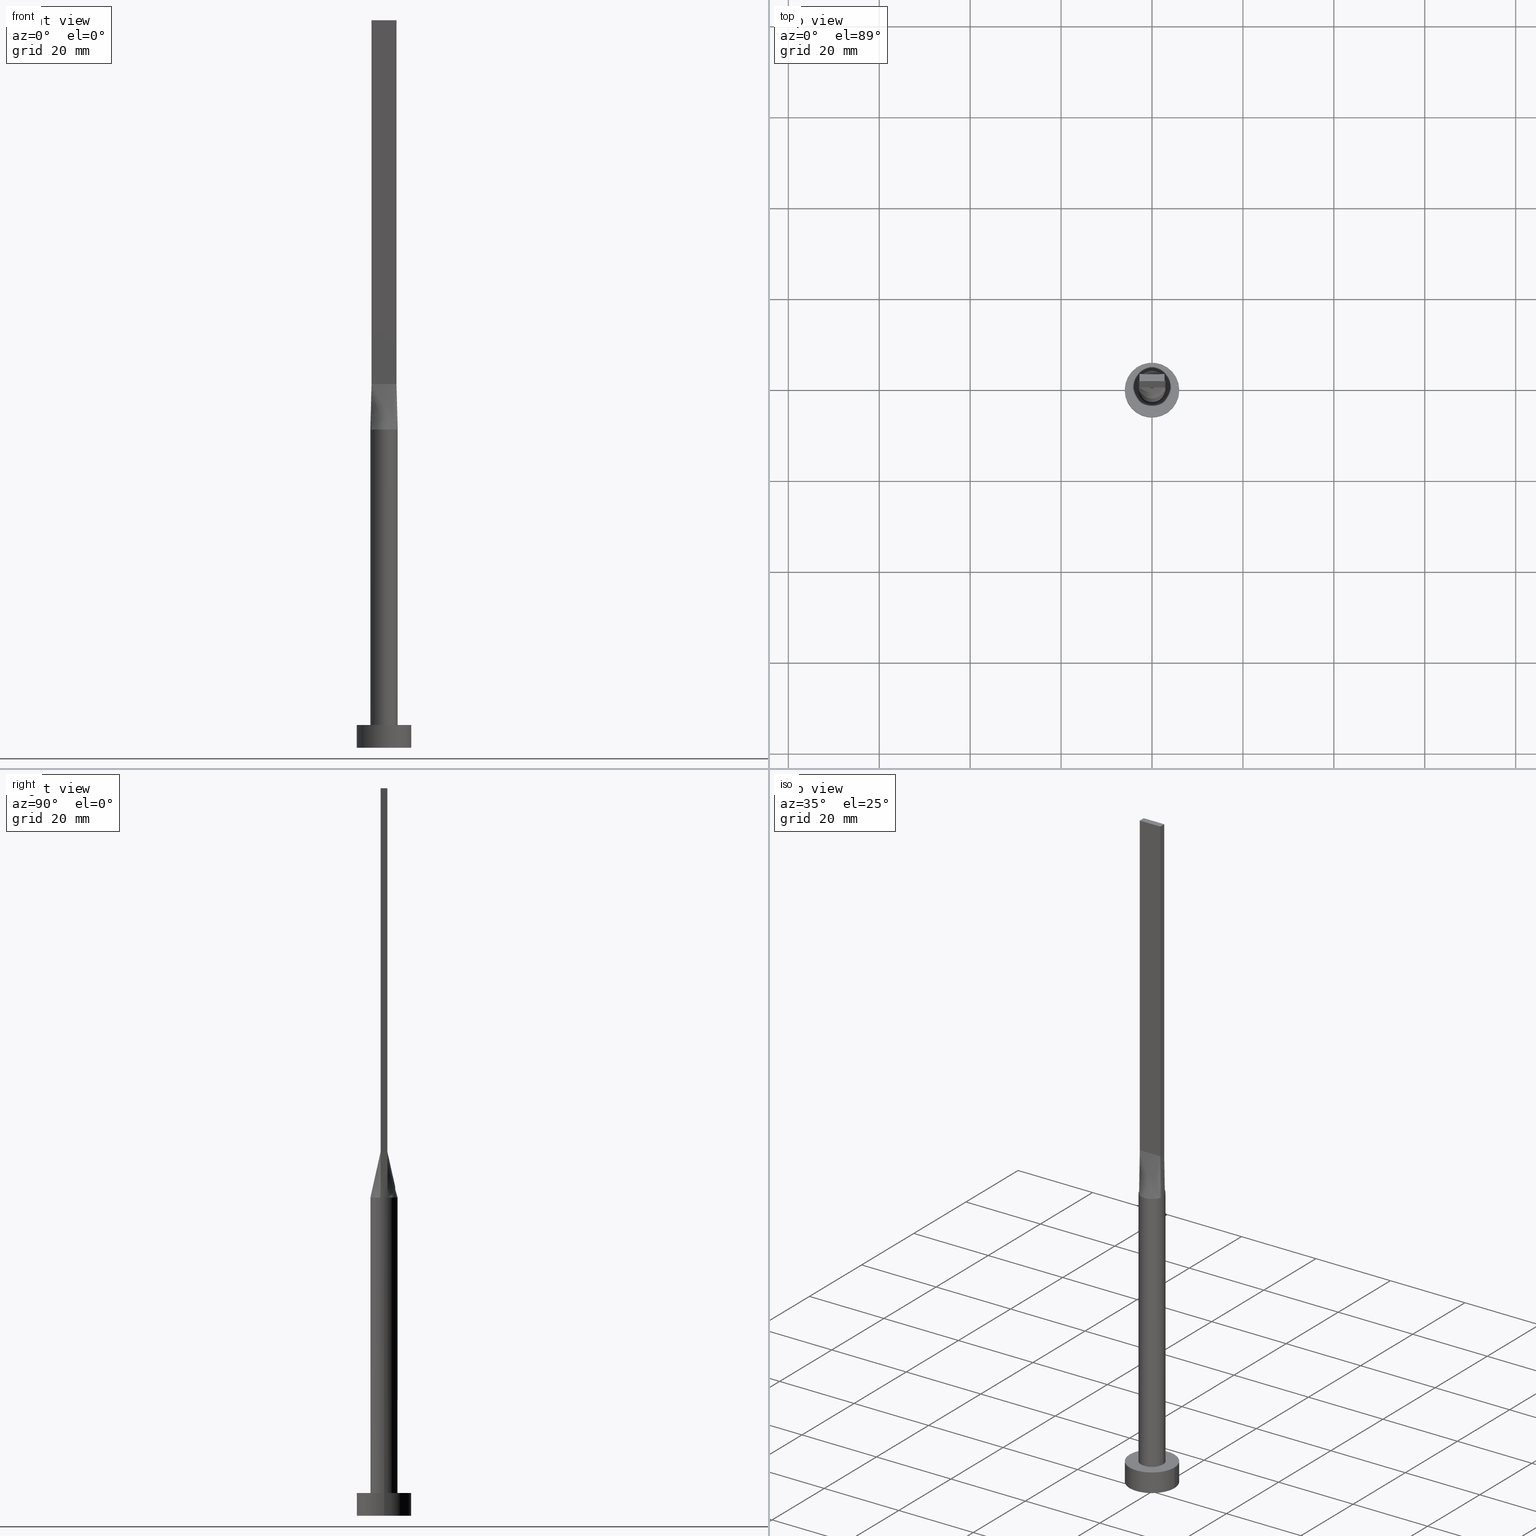
[diagram: canonical four-view strip — front | top / right | iso, engineering-drawing reading convention]
A machine part, canonical four-view strip (front | top / right | iso — engineering-drawing reading convention). The complete STEP part file that produces these views, byte-faithful:
ISO-10303-21;
HEADER;
FILE_DESCRIPTION (( 'STEP AP203' ),
    '1' );
FILE_NAME ('e038.STEP',
    '2023-02-13T10:28:24',
    ( '' ),
    ( '' ),
    'SwSTEP 2.0',
    'SolidWorks 2019',
    '' );
FILE_SCHEMA (( 'CONFIG_CONTROL_DESIGN' ));
ENDSEC;

DATA;
#1 = AXIS2_PLACEMENT_3D ( 'NONE', #257, #96, #499 ) ;
#2 = DIRECTION ( 'NONE',  ( 0.000000000000000000, 0.000000000000000000, 1.000000000000000000 ) ) ;
#3 = ORIENTED_EDGE ( 'NONE', *, *, #216, .T. ) ;
#4 = CARTESIAN_POINT ( 'NONE',  ( -2.442412046818594806, -1.765588549521968975, 69.99999999999998579 ) ) ;
#5 = ORIENTED_EDGE ( 'NONE', *, *, #493, .F. ) ;
#6 = CARTESIAN_POINT ( 'NONE',  ( -1.604166666666669183, -0.7499999999999995559, 79.99999999999998579 ) ) ;
#7 = ADVANCED_FACE ( 'NONE', ( #98, #263 ), #270, .T. ) ;
#8 = CC_DESIGN_DATE_AND_TIME_ASSIGNMENT ( #267, #327, ( #45 ) ) ;
#9 = EDGE_CURVE ( 'NONE', #138, #114, #504, .T. ) ;
#10 = ORIENTED_EDGE ( 'NONE', *, *, #35, .F. ) ;
#11 = AXIS2_PLACEMENT_3D ( 'NONE', #574, #207, #158 ) ;
#12 = CARTESIAN_POINT ( 'NONE',  ( 0.000000000000000000, 0.000000000000000000, 5.000000000000000000 ) ) ;
#13 = CARTESIAN_POINT ( 'NONE',  ( -2.750000000000000000, 0.7500000000000002220, 80.00000000000000000 ) ) ;
#14 = EDGE_CURVE ( 'NONE', #490, #289, #432, .T. ) ;
#15 = CARTESIAN_POINT ( 'NONE',  ( 2.894291463713196677, -0.7893522173763275473, 70.00000000000000000 ) ) ;
#16 = CARTESIAN_POINT ( 'NONE',  ( 2.750000000000000000, -0.4999999999999995559, 79.99999999999998579 ) ) ;
#17 = ORIENTED_EDGE ( 'NONE', *, *, #9, .F. ) ;
#18 = DIRECTION ( 'NONE',  ( -0.000000000000000000, -0.000000000000000000, -1.000000000000000000 ) ) ;
#19 = CIRCLE ( 'NONE', #358, 6.000000000000000888 ) ;
#20 = CARTESIAN_POINT ( 'NONE',  ( -2.894506632021299541, 0.7894116946786272626, 70.00000000000000000 ) ) ;
#21 = VERTEX_POINT ( 'NONE', #90 ) ;
#22 = COORDINATED_UNIVERSAL_TIME_OFFSET ( 1, 0, .AHEAD. ) ;
#23 = VECTOR ( 'NONE', #492, 1000.000000000000000 ) ;
#24 = DIRECTION ( 'NONE',  ( 1.000000000000000000, 0.000000000000000000, -0.000000000000000000 ) ) ;
#25 = ORIENTED_EDGE ( 'NONE', *, *, #9, .T. ) ;
#26 = APPROVAL_ROLE ( '' ) ;
#27 = CARTESIAN_POINT ( 'NONE',  ( -1.833333333333335258, -0.7499999999999995559, 79.99999999999998579 ) ) ;
#28 = CARTESIAN_POINT ( 'NONE',  ( -1.751288851749021491, 2.458468820606022565, 70.00000000000001421 ) ) ;
#29 = LINE ( 'NONE', #336, #94 ) ;
#30 = VECTOR ( 'NONE', #100, 1000.000000000000114 ) ;
#31 = EDGE_CURVE ( 'NONE', #341, #424, #259, .T. ) ;
#32 = EDGE_LOOP ( 'NONE', ( #557, #247 ) ) ;
#33 = CC_DESIGN_PERSON_AND_ORGANIZATION_ASSIGNMENT ( #448, #218, ( #520 ) ) ;
#34 = EDGE_LOOP ( 'NONE', ( #173, #371, #350, #39 ) ) ;
#35 = EDGE_CURVE ( 'NONE', #56, #21, #19, .T. ) ;
#36 = ORIENTED_EDGE ( 'NONE', *, *, #125, .T. ) ;
#37 = CARTESIAN_POINT ( 'NONE',  ( 2.248179627679386172, 2.014142483996539834, 70.00000000000000000 ) ) ;
#38 = CARTESIAN_POINT ( 'NONE',  ( -2.750000000000000000, -0.4999999999999994449, 79.99999999999998579 ) ) ;
#39 = ORIENTED_EDGE ( 'NONE', *, *, #428, .F. ) ;
#40 = FACE_OUTER_BOUND ( 'NONE', #572, .T. ) ;
#41 = CC_DESIGN_PERSON_AND_ORGANIZATION_ASSIGNMENT ( #372, #563, ( #201 ) ) ;
#42 = CARTESIAN_POINT ( 'NONE',  ( -6.000000000000000888, 0.000000000000000000, 5.000000000000000000 ) ) ;
#43 = CARTESIAN_POINT ( 'NONE',  ( 2.750000000000000000, 0.7500000000000002220, 160.0000000000000000 ) ) ;
#44 = CARTESIAN_POINT ( 'NONE',  ( -2.248179627679385728, 2.014142483996540278, 70.00000000000001421 ) ) ;
#45 = SECURITY_CLASSIFICATION ( '', '', #277 ) ;
#46 = CARTESIAN_POINT ( 'NONE',  ( 0.2291666666666632990, -0.7499999999999995559, 79.99999999999998579 ) ) ;
#47 = CARTESIAN_POINT ( 'NONE',  ( 0.4583333333333300397, -0.7499999999999995559, 79.99999999999998579 ) ) ;
#48 = CARTESIAN_POINT ( 'NONE',  ( -2.894489875237701959, -0.7894071376467488577, 70.00000000000000000 ) ) ;
#49 = CARTESIAN_POINT ( 'NONE',  ( 2.750000000000000000, -0.7499999999999997780, 160.0000000000000000 ) ) ;
#50 = DIRECTION ( 'NONE',  ( -0.000000000000000000, -0.000000000000000000, -1.000000000000000000 ) ) ;
#51 = PRODUCT_RELATED_PRODUCT_CATEGORY ( 'detail', '', ( #520 ) ) ;
#52 = ADVANCED_FACE ( 'NONE', ( #134 ), #393, .F. ) ;
#53 = AXIS2_PLACEMENT_3D ( 'NONE', #356, #292, #539 ) ;
#54 = DIRECTION ( 'NONE',  ( -0.01442753284129405511, -0.003934781683989273249, -0.9998881756422629552 ) ) ;
#55 = CARTESIAN_POINT ( 'NONE',  ( 2.894482401701604424, 0.7894050286368272662, 70.00000000000000000 ) ) ;
#56 = VERTEX_POINT ( 'NONE', #579 ) ;
#57 = ORIENTED_EDGE ( 'NONE', *, *, #349, .F. ) ;
#58 = CIRCLE ( 'NONE', #347, 3.000000000000000444 ) ;
#59 = COORDINATED_UNIVERSAL_TIME_OFFSET ( 1, 0, .AHEAD. ) ;
#60 = DIRECTION ( 'NONE',  ( 0.000000000000000000, 0.000000000000000000, 1.000000000000000000 ) ) ;
#61 = CARTESIAN_POINT ( 'NONE',  ( 0.2291666666666687113, 0.7500000000000003331, 80.00000000000000000 ) ) ;
#62 = CALENDAR_DATE ( 2023, 13, 2 ) ;
#63 = VERTEX_POINT ( 'NONE', #522 ) ;
#64 = VECTOR ( 'NONE', #76, 1000.000000000000000 ) ;
#65 = DIRECTION ( 'NONE',  ( -1.000000000000000000, -0.000000000000000000, -0.000000000000000000 ) ) ;
#66 = EDGE_LOOP ( 'NONE', ( #25, #415, #290, #287, #155 ) ) ;
#67 = LINE ( 'NONE', #112, #64 ) ;
#68 = ORIENTED_EDGE ( 'NONE', *, *, #225, .T. ) ;
#69 = PERSON ( 'NEUR�EN�', 'NEUR�EN�', 'NEUR�EN�', ('NEUR�EN�'), ('NEUR�EN�'), ('NEUR�EN�') ) ;
#70 = CARTESIAN_POINT ( 'NONE',  ( -1.833333333333332149, 0.7500000000000002220, 79.99999999999998579 ) ) ;
#71 = CARTESIAN_POINT ( 'NONE',  ( 2.894514141151844910, -0.7894138151126538494, 70.00000000000000000 ) ) ;
#72 = ORIENTED_EDGE ( 'NONE', *, *, #428, .T. ) ;
#73 = DIRECTION ( 'NONE',  ( -0.000000000000000000, -0.000000000000000000, -1.000000000000000000 ) ) ;
#74 = AXIS2_PLACEMENT_3D ( 'NONE', #165, #527, #346 ) ;
#75 = ORIENTED_EDGE ( 'NONE', *, *, #556, .T. ) ;
#76 = DIRECTION ( 'NONE',  ( 0.000000000000000000, 1.000000000000000000, 0.000000000000000000 ) ) ;
#77 = ORIENTED_EDGE ( 'NONE', *, *, #366, .T. ) ;
#78 = EDGE_CURVE ( 'NONE', #235, #260, #106, .T. ) ;
#79 = CARTESIAN_POINT ( 'NONE',  ( -2.750000000000000000, 0.7500000000000002220, 80.00000000000000000 ) ) ;
#80 = DIRECTION ( 'NONE',  ( 0.000000000000000000, 0.000000000000000000, 1.000000000000000000 ) ) ;
#81 = CARTESIAN_POINT ( 'NONE',  ( 2.830829925251657997, -1.022044525068636078, 70.00000000000001421 ) ) ;
#82 = CIRCLE ( 'NONE', #145, 3.000000000000000444 ) ;
#83 = EDGE_LOOP ( 'NONE', ( #442, #3, #241, #412, #17, #182 ) ) ;
#84 = PRODUCT_DEFINITION ( 'NEZN�M�', '', #201, #243 ) ;
#85 = DIRECTION ( 'NONE',  ( 1.000000000000000000, 0.000000000000000000, 0.000000000000000000 ) ) ;
#86 = DIRECTION ( 'NONE',  ( 0.000000000000000000, -1.000000000000000000, 0.000000000000000000 ) ) ;
#87 = CARTESIAN_POINT ( 'NONE',  ( 2.442412046818594362, -1.765588549521970751, 70.00000000000001421 ) ) ;
#88 = CARTESIAN_POINT ( 'NONE',  ( 3.000000000000000444, 3.673940397442060361E-16, 70.00000000000000000 ) ) ;
#89 = EDGE_CURVE ( 'NONE', #289, #21, #170, .T. ) ;
#90 = CARTESIAN_POINT ( 'NONE',  ( 6.000000000000000888, 7.347880794884120722E-16, 0.000000000000000000 ) ) ;
#91 = ORIENTED_EDGE ( 'NONE', *, *, #99, .T. ) ;
#92 = CARTESIAN_POINT ( 'NONE',  ( 2.291666666666665630, -0.7499999999999997780, 79.99999999999998579 ) ) ;
#93 = FACE_OUTER_BOUND ( 'NONE', #386, .T. ) ;
#94 = VECTOR ( 'NONE', #191, 1000.000000000000000 ) ;
#95 = PERSON_AND_ORGANIZATION ( #69, #154 ) ;
#96 = DIRECTION ( 'NONE',  ( -0.000000000000000000, -0.000000000000000000, -1.000000000000000000 ) ) ;
#97 = PERSON_AND_ORGANIZATION ( #69, #154 ) ;
#98 = FACE_BOUND ( 'NONE', #32, .T. ) ;
#99 = EDGE_CURVE ( 'NONE', #252, #249, #82, .T. ) ;
#100 = DIRECTION ( 'NONE',  ( 0.01442753284129401174, -0.003934781683989196054, 0.9998881756422629552 ) ) ;
#101 = CIRCLE ( 'NONE', #11, 3.000000000000000444 ) ;
#102 = EDGE_CURVE ( 'NONE', #424, #345, #133, .T. ) ;
#103 = CARTESIAN_POINT ( 'NONE',  ( -2.894291463713196677, 0.7893522173763264371, 70.00000000000000000 ) ) ;
#104 = CARTESIAN_POINT ( 'NONE',  ( -2.830829925251659329, 1.022044525068634302, 70.00000000000001421 ) ) ;
#105 = DATE_AND_TIME ( #62, #166 ) ;
#106 = LINE ( 'NONE', #281, #485 ) ;
#107 = ADVANCED_FACE ( 'NONE', ( #219 ), #271, .T. ) ;
#108 = CARTESIAN_POINT ( 'NONE',  ( -1.604166666666665186, 0.7500000000000002220, 79.99999999999998579 ) ) ;
#109 = LOCAL_TIME ( 11, 28, 24.00000000000000000, #22 ) ;
#110 = LINE ( 'NONE', #282, #210 ) ;
#111 = DIRECTION ( 'NONE',  ( -0.000000000000000000, -0.000000000000000000, -1.000000000000000000 ) ) ;
#112 = CARTESIAN_POINT ( 'NONE',  ( 2.750000000000000000, -0.7499999999999997780, 160.0000000000000000 ) ) ;
#113 = ORIENTED_EDGE ( 'NONE', *, *, #322, .F. ) ;
#114 = VERTEX_POINT ( 'NONE', #195 ) ;
#115 = CARTESIAN_POINT ( 'NONE',  ( -0.9166666666666648533, 0.7500000000000002220, 79.99999999999998579 ) ) ;
#116 = CARTESIAN_POINT ( 'NONE',  ( -2.830829925251658885, -1.022044525068633858, 70.00000000000001421 ) ) ;
#117 = ORIENTED_EDGE ( 'NONE', *, *, #237, .T. ) ;
#118 = CLOSED_SHELL ( 'NONE', ( #194, #266, #137, #7, #52, #178, #577, #399, #536, #107, #470, #531, #330, #423, #300 ) ) ;
#119 = CARTESIAN_POINT ( 'NONE',  ( 2.750000000000000000, 0.7500000000000002220, 80.00000000000000000 ) ) ;
#120 = APPROVAL ( #567, 'NEUR�EN�' ) ;
#121 = CC_DESIGN_APPROVAL ( #120, ( #45 ) ) ;
#122 = CARTESIAN_POINT ( 'NONE',  ( 2.248179627679386172, 2.014142483996539834, 70.00000000000000000 ) ) ;
#123 = CARTESIAN_POINT ( 'NONE',  ( -3.000000000000000000, 0.2678361673275868049, 70.00000000000000000 ) ) ;
#124 = LINE ( 'NONE', #298, #23 ) ;
#125 = EDGE_CURVE ( 'NONE', #63, #341, #331, .T. ) ;
#126 = CARTESIAN_POINT ( 'NONE',  ( -0.3818979204996094667, -3.000000000000000000, 70.00000000000000000 ) ) ;
#127 = CARTESIAN_POINT ( 'NONE',  ( 0.000000000000000000, 0.000000000000000000, 0.000000000000000000 ) ) ;
#128 = AXIS2_PLACEMENT_3D ( 'NONE', #445, #498, #397 ) ;
#129 = APPROVAL_STATUS ( 'not_yet_approved' ) ;
#130 = CARTESIAN_POINT ( 'NONE',  ( 0.000000000000000000, 0.000000000000000000, 5.000000000000000000 ) ) ;
#131 = DIRECTION ( 'NONE',  ( 0.000000000000000000, 0.000000000000000000, 1.000000000000000000 ) ) ;
#132 = CC_DESIGN_PERSON_AND_ORGANIZATION_ASSIGNMENT ( #561, #275, ( #201 ) ) ;
#133 = LINE ( 'NONE', #458, #411 ) ;
#134 = FACE_OUTER_BOUND ( 'NONE', #381, .T. ) ;
#135 = DATE_AND_TIME ( #550, #294 ) ;
#136 = DIRECTION ( 'NONE',  ( -0.000000000000000000, -0.000000000000000000, -1.000000000000000000 ) ) ;
#137 = ADVANCED_FACE ( 'NONE', ( #231 ), #427, .T. ) ;
#138 = VERTEX_POINT ( 'NONE', #311 ) ;
#139 = AXIS2_PLACEMENT_3D ( 'NONE', #335, #435, #189 ) ;
#140 = PERSON_AND_ORGANIZATION_ROLE ( 'classification_officer' ) ;
#141 = CARTESIAN_POINT ( 'NONE',  ( 0.000000000000000000, 0.000000000000000000, 70.00000000000000000 ) ) ;
#142 = ORIENTED_EDGE ( 'NONE', *, *, #216, .F. ) ;
#143 = CARTESIAN_POINT ( 'NONE',  ( -0.7628506052746797383, 2.924692134573155133, 70.00000000000001421 ) ) ;
#144 = CALENDAR_DATE ( 2023, 13, 2 ) ;
#145 = AXIS2_PLACEMENT_3D ( 'NONE', #209, #438, #261 ) ;
#146 = B_SPLINE_SURFACE_WITH_KNOTS ( 'NONE', 3, 1, ( 
 ( #532, #578 ),
 ( #116, #288 ),
 ( #208, #226 ),
 ( #4, #27 ),
 ( #401, #6 ),
 ( #314, #538 ),
 ( #351, #301 ),
 ( #355, #461 ),
 ( #126, #174 ),
 ( #256, #46 ),
 ( #168, #47 ),
 ( #407, #211 ),
 ( #502, #169 ),
 ( #396, #405 ),
 ( #87, #452 ),
 ( #212, #92 ),
 ( #81, #494 ),
 ( #15, #497 ) ),
 .UNSPECIFIED., .F., .F., .F.,
 ( 4, 2, 2, 2, 2, 2, 2, 2, 4 ),
 ( 2, 2 ),
 ( 0.000000000000000000, 0.1250000000000000000, 0.2500000000000000000, 0.3750000000000000000, 0.5000000000000000000, 0.6250000000000000000, 0.7500000000000000000, 0.8750000000000000000, 1.000000000000000000 ),
 ( 0.000000000000000000, 1.000000000000000000 ),
 .UNSPECIFIED. ) ;
#147 = PERSON_AND_ORGANIZATION ( #69, #154 ) ;
#148 = CARTESIAN_POINT ( 'NONE',  ( 0.7628506052746800714, 2.924692134573154689, 70.00000000000001421 ) ) ;
#149 = CARTESIAN_POINT ( 'NONE',  ( -0.4583333333333313164, 0.7500000000000003331, 79.99999999999998579 ) ) ;
#150 = EDGE_LOOP ( 'NONE', ( #509, #117, #113, #344 ) ) ;
#151 = FACE_OUTER_BOUND ( 'NONE', #478, .T. ) ;
#152 = CARTESIAN_POINT ( 'NONE',  ( 1.833333333333334370, 0.7500000000000002220, 79.99999999999998579 ) ) ;
#153 = PLANE ( 'NONE',  #74 ) ;
#154 = ORGANIZATION ( 'NEUR�EN�', 'NEUR�EN�', '' ) ;
#155 = ORIENTED_EDGE ( 'NONE', *, *, #310, .F. ) ;
#156 = CARTESIAN_POINT ( 'NONE',  ( 6.000000000000000888, 7.347880794884120722E-16, 5.000000000000000000 ) ) ;
#157 = CARTESIAN_POINT ( 'NONE',  ( 1.447928580458859305, 2.653161878569118670, 70.00000000000000000 ) ) ;
#158 = DIRECTION ( 'NONE',  ( 1.000000000000000000, -5.329070518200751394E-15, 0.000000000000000000 ) ) ;
#159 = EDGE_CURVE ( 'NONE', #505, #501, #503, .T. ) ;
#160 = LINE ( 'NONE', #517, #229 ) ;
#161 = PLANE ( 'NONE',  #128 ) ;
#162 = CARTESIAN_POINT ( 'NONE',  ( 0.000000000000000000, 0.000000000000000000, 160.0000000000000000 ) ) ;
#163 = ORIENTED_EDGE ( 'NONE', *, *, #366, .F. ) ;
#164 = VECTOR ( 'NONE', #65, 1000.000000000000000 ) ;
#165 = CARTESIAN_POINT ( 'NONE',  ( -2.750000000000000000, 0.7500000000000002220, 160.0000000000000000 ) ) ;
#166 = LOCAL_TIME ( 11, 28, 24.00000000000000000, #59 ) ;
#167 = EDGE_LOOP ( 'NONE', ( #400, #268, #406, #417 ) ) ;
#168 = CARTESIAN_POINT ( 'NONE',  ( 0.7628506052746785171, -2.924692134573155577, 70.00000000000000000 ) ) ;
#169 = CARTESIAN_POINT ( 'NONE',  ( 1.145833333333330817, -0.7499999999999996669, 79.99999999999998579 ) ) ;
#170 = LINE ( 'NONE', #441, #198 ) ;
#171 = VECTOR ( 'NONE', #73, 1000.000000000000000 ) ;
#172 = FACE_OUTER_BOUND ( 'NONE', #439, .T. ) ;
#173 = ORIENTED_EDGE ( 'NONE', *, *, #391, .T. ) ;
#174 = CARTESIAN_POINT ( 'NONE',  ( -0.2291666666666700158, -0.7499999999999995559, 80.00000000000000000 ) ) ;
#175 = CARTESIAN_POINT ( 'NONE',  ( 2.822145731856598339, -0.7696761086881637182, 75.00000000000001421 ) ) ;
#176 = DIRECTION ( 'NONE',  ( 1.000000000000000000, 0.000000000000000000, 0.000000000000000000 ) ) ;
#177 = APPROVAL_ROLE ( '' ) ;
#178 = ADVANCED_FACE ( 'NONE', ( #93 ), #365, .T. ) ;
#179 = DIRECTION ( 'NONE',  ( -1.000000000000000000, 0.000000000000000000, 0.000000000000000000 ) ) ;
#180 = DIRECTION ( 'NONE',  ( 1.000000000000000000, 0.000000000000000000, -0.000000000000000000 ) ) ;
#181 = VECTOR ( 'NONE', #213, 1000.000000000000114 ) ;
#182 = ORIENTED_EDGE ( 'NONE', *, *, #391, .F. ) ;
#183 = DATE_TIME_ROLE ( 'creation_date' ) ;
#184 = LINE ( 'NONE', #559, #30 ) ;
#185 = ORIENTED_EDGE ( 'NONE', *, *, #487, .T. ) ;
#186 = B_SPLINE_SURFACE_WITH_KNOTS ( 'NONE', 3, 1, ( 
 ( #230, #293 ),
 ( #269, #16 ),
 ( #296, #426 ),
 ( #480, #451 ),
 ( #514, #343 ),
 ( #535, #119 ) ),
 .UNSPECIFIED., .F., .F., .F.,
 ( 4, 2, 4 ),
 ( 2, 2 ),
 ( 0.000000000000000000, 0.5000000000000000000, 1.000000000000000000 ),
 ( 0.000000000000000000, 1.000000000000000000 ),
 .UNSPECIFIED. ) ;
#187 = COORDINATED_UNIVERSAL_TIME_OFFSET ( 1, 0, .AHEAD. ) ;
#188 = CALENDAR_DATE ( 2023, 13, 2 ) ;
#189 = DIRECTION ( 'NONE',  ( 0.000000000000000000, 0.000000000000000000, 1.000000000000000000 ) ) ;
#190 = CARTESIAN_POINT ( 'NONE',  ( -1.145833333333331705, 0.7500000000000002220, 79.99999999999998579 ) ) ;
#191 = DIRECTION ( 'NONE',  ( -0.000000000000000000, -0.000000000000000000, -1.000000000000000000 ) ) ;
#192 = CARTESIAN_POINT ( 'NONE',  ( 2.750000000000000000, 0.7500000000000002220, 80.00000000000000000 ) ) ;
#193 = ORIENTED_EDGE ( 'NONE', *, *, #328, .T. ) ;
#194 = ADVANCED_FACE ( 'NONE', ( #317 ), #507, .T. ) ;
#195 = CARTESIAN_POINT ( 'NONE',  ( -3.000000000000000000, -1.912111867153115409E-16, 70.00000000000000000 ) ) ;
#196 = EDGE_LOOP ( 'NONE', ( #434, #323 ) ) ;
#197 = AXIS2_PLACEMENT_3D ( 'NONE', #398, #548, #308 ) ;
#198 = VECTOR ( 'NONE', #359, 1000.000000000000000 ) ;
#199 = CARTESIAN_POINT ( 'NONE',  ( 1.145833333333335036, 0.7500000000000003331, 79.99999999999998579 ) ) ;
#200 = FACE_OUTER_BOUND ( 'NONE', #150, .T. ) ;
#201 = PRODUCT_DEFINITION_FORMATION_WITH_SPECIFIED_SOURCE ( 'LIBOVOLN�', '', #520, .NOT_KNOWN. ) ;
#202 = CARTESIAN_POINT ( 'NONE',  ( 0.000000000000000000, 0.000000000000000000, 70.00000000000000000 ) ) ;
#203 = ORIENTED_EDGE ( 'NONE', *, *, #237, .F. ) ;
#204 = EDGE_CURVE ( 'NONE', #313, #222, #382, .T. ) ;
#205 = UNCERTAINTY_MEASURE_WITH_UNIT (LENGTH_MEASURE( 1.000000000000000082E-05 ), #457, 'distance_accuracy_value', 'NONE');
#206 = CARTESIAN_POINT ( 'NONE',  ( -2.750000000000000000, 0.5000000000000002220, 79.99999999999998579 ) ) ;
#207 = DIRECTION ( 'NONE',  ( 0.000000000000000000, 0.000000000000000000, 1.000000000000000000 ) ) ;
#208 = CARTESIAN_POINT ( 'NONE',  ( -2.733316749964668446, -1.269511353635829787, 69.99999999999998579 ) ) ;
#209 = CARTESIAN_POINT ( 'NONE',  ( 0.000000000000000000, 0.000000000000000000, 5.000000000000000000 ) ) ;
#210 = VECTOR ( 'NONE', #510, 1000.000000000000000 ) ;
#211 = CARTESIAN_POINT ( 'NONE',  ( 0.9166666666666637431, -0.7499999999999995559, 79.99999999999998579 ) ) ;
#212 = CARTESIAN_POINT ( 'NONE',  ( 2.733316749964666670, -1.269511353635832229, 69.99999999999998579 ) ) ;
#213 = DIRECTION ( 'NONE',  ( -0.01442753284129401174, 0.003934781683989412894, 0.9998881756422629552 ) ) ;
#214 = CYLINDRICAL_SURFACE ( 'NONE', #525, 6.000000000000000888 ) ;
#215 = APPROVAL_PERSON_ORGANIZATION ( #364, #357, #177 ) ;
#216 = EDGE_CURVE ( 'NONE', #313, #249, #450, .T. ) ;
#217 = DIRECTION ( 'NONE',  ( 0.000000000000000000, 0.000000000000000000, 1.000000000000000000 ) ) ;
#218 = PERSON_AND_ORGANIZATION_ROLE ( 'design_owner' ) ;
#219 = FACE_OUTER_BOUND ( 'NONE', #34, .T. ) ;
#220 = ORIENTED_EDGE ( 'NONE', *, *, #322, .T. ) ;
#221 =( NAMED_UNIT ( * ) SI_UNIT ( $, .STERADIAN. ) SOLID_ANGLE_UNIT ( ) );
#222 = VERTEX_POINT ( 'NONE', #55 ) ;
#223 = APPROVAL_STATUS ( 'not_yet_approved' ) ;
#224 = ORIENTED_EDGE ( 'NONE', *, *, #513, .F. ) ;
#225 = EDGE_CURVE ( 'NONE', #490, #56, #408, .T. ) ;
#226 = CARTESIAN_POINT ( 'NONE',  ( -2.291666666666667851, -0.7499999999999995559, 79.99999999999998579 ) ) ;
#227 = CARTESIAN_POINT ( 'NONE',  ( -0.7628506052746797383, 2.924692134573155133, 70.00000000000001421 ) ) ;
#228 = CARTESIAN_POINT ( 'NONE',  ( -2.520833333333333037, 0.7500000000000002220, 79.99999999999998579 ) ) ;
#229 = VECTOR ( 'NONE', #274, 1000.000000000000114 ) ;
#230 = CARTESIAN_POINT ( 'NONE',  ( 2.894291463713196677, -0.7893522173763282135, 70.00000000000000000 ) ) ;
#231 = FACE_OUTER_BOUND ( 'NONE', #321, .T. ) ;
#232 = ORIENTED_EDGE ( 'NONE', *, *, #14, .F. ) ;
#233 = CARTESIAN_POINT ( 'NONE',  ( -2.750000000000000000, -0.7499999999999994449, 160.0000000000000000 ) ) ;
#234 = APPROVAL ( #223, 'NEUR�EN�' ) ;
#235 = VERTEX_POINT ( 'NONE', #496 ) ;
#236 = DIRECTION ( 'NONE',  ( 1.000000000000000000, 0.000000000000000000, 0.000000000000000000 ) ) ;
#237 = EDGE_CURVE ( 'NONE', #463, #501, #320, .T. ) ;
#238 = CARTESIAN_POINT ( 'NONE',  ( -0.3818979204996078569, 3.000000000000000888, 70.00000000000001421 ) ) ;
#239 = CARTESIAN_POINT ( 'NONE',  ( 2.750000000000000000, -0.7499999999999997780, 160.0000000000000000 ) ) ;
#240 = VECTOR ( 'NONE', #524, 1000.000000000000000 ) ;
#241 = ORIENTED_EDGE ( 'NONE', *, *, #334, .T. ) ;
#242 = ORIENTED_EDGE ( 'NONE', *, *, #387, .F. ) ;
#243 = DESIGN_CONTEXT ( 'detailed design', #276, 'design' ) ;
#244 = PLANE ( 'NONE',  #477 ) ;
#245 = CARTESIAN_POINT ( 'NONE',  ( 2.830829925251657997, 1.022044525068634302, 70.00000000000001421 ) ) ;
#246 = APPLICATION_CONTEXT ( 'configuration controlled 3d designs of mechanical parts and assemblies' ) ;
#247 = ORIENTED_EDGE ( 'NONE', *, *, #334, .F. ) ;
#248 = CARTESIAN_POINT ( 'NONE',  ( -2.750000000000000000, -0.2499999999999995837, 79.99999999999998579 ) ) ;
#249 = VERTEX_POINT ( 'NONE', #362 ) ;
#250 = AXIS2_PLACEMENT_3D ( 'NONE', #127, #131, #85 ) ;
#251 = CARTESIAN_POINT ( 'NONE',  ( 0.000000000000000000, 0.000000000000000000, 0.000000000000000000 ) ) ;
#252 = VERTEX_POINT ( 'NONE', #547 ) ;
#253 = DIRECTION ( 'NONE',  ( 1.000000000000000000, 0.000000000000000000, 0.000000000000000000 ) ) ;
#254 = CARTESIAN_POINT ( 'NONE',  ( -2.750000000000000000, 0.7500000000000002220, 80.00000000000000000 ) ) ;
#255 = CARTESIAN_POINT ( 'NONE',  ( -2.733316749964668002, 1.269511353635830453, 70.00000000000001421 ) ) ;
#256 = CARTESIAN_POINT ( 'NONE',  ( 0.3818979204996068022, -3.000000000000001332, 70.00000000000000000 ) ) ;
#257 = CARTESIAN_POINT ( 'NONE',  ( 0.000000000000000000, 0.000000000000000000, 70.00000000000000000 ) ) ;
#258 = CARTESIAN_POINT ( 'NONE',  ( -3.000000000000000444, 0.000000000000000000, 70.00000000000000000 ) ) ;
#259 = LINE ( 'NONE', #13, #540 ) ;
#260 = VERTEX_POINT ( 'NONE', #315 ) ;
#261 = DIRECTION ( 'NONE',  ( 1.000000000000000000, 0.000000000000000000, 0.000000000000000000 ) ) ;
#262 = DIRECTION ( 'NONE',  ( -0.000000000000000000, -0.000000000000000000, -1.000000000000000000 ) ) ;
#263 = FACE_OUTER_BOUND ( 'NONE', #196, .T. ) ;
#264 = PERSON_AND_ORGANIZATION_ROLE ( 'creator' ) ;
#265 = DIRECTION ( 'NONE',  ( 1.000000000000000000, 0.000000000000000000, 0.000000000000000000 ) ) ;
#266 = ADVANCED_FACE ( 'NONE', ( #454 ), #214, .T. ) ;
#267 = DATE_AND_TIME ( #144, #495 ) ;
#268 = ORIENTED_EDGE ( 'NONE', *, *, #375, .F. ) ;
#269 = CARTESIAN_POINT ( 'NONE',  ( 2.963522232943966106, -0.5355060635301738259, 70.00000000000001421 ) ) ;
#270 = PLANE ( 'NONE',  #456 ) ;
#271 = B_SPLINE_SURFACE_WITH_KNOTS ( 'NONE', 3, 1, ( 
 ( #580, #192 ),
 ( #475, #425 ),
 ( #479, #570 ),
 ( #576, #152 ),
 ( #37, #383 ),
 ( #568, #199 ),
 ( #157, #429 ),
 ( #148, #329 ),
 ( #483, #61 ),
 ( #238, #573 ),
 ( #227, #149 ),
 ( #530, #115 ),
 ( #28, #190 ),
 ( #284, #108 ),
 ( #526, #70 ),
 ( #521, #566 ),
 ( #104, #228 ),
 ( #421, #278 ) ),
 .UNSPECIFIED., .F., .F., .F.,
 ( 4, 2, 2, 2, 2, 2, 2, 2, 4 ),
 ( 2, 2 ),
 ( 0.000000000000000000, 0.1250000000000000000, 0.2500000000000000000, 0.3750000000000000000, 0.5000000000000000000, 0.6250000000000000000, 0.7500000000000000000, 0.8750000000000000000, 1.000000000000000000 ),
 ( 0.000000000000000000, 1.000000000000000000 ),
 .UNSPECIFIED. ) ;
#272 = CARTESIAN_POINT ( 'NONE',  ( 0.3818979204996085230, 3.000000000000001332, 70.00000000000000000 ) ) ;
#273 = APPROVAL_PERSON_ORGANIZATION ( #472, #120, #368 ) ;
#274 = DIRECTION ( 'NONE',  ( -0.01442753284129401174, -0.003934781683989391210, 0.9998881756422629552 ) ) ;
#275 = PERSON_AND_ORGANIZATION_ROLE ( 'creator' ) ;
#276 = APPLICATION_CONTEXT ( 'configuration controlled 3d designs of mechanical parts and assemblies' ) ;
#277 = SECURITY_CLASSIFICATION_LEVEL ( 'unclassified' ) ;
#278 = CARTESIAN_POINT ( 'NONE',  ( -2.750000000000000000, 0.7500000000000002220, 80.00000000000000000 ) ) ;
#279 = VECTOR ( 'NONE', #50, 1000.000000000000000 ) ;
#280 = CC_DESIGN_APPROVAL ( #357, ( #84 ) ) ;
#281 = CARTESIAN_POINT ( 'NONE',  ( -2.750000000000000000, 0.7500000000000002220, 160.0000000000000000 ) ) ;
#282 = CARTESIAN_POINT ( 'NONE',  ( 2.750000000000000000, 0.7500000000000002220, 160.0000000000000000 ) ) ;
#283 = DIRECTION ( 'NONE',  ( 0.000000000000000000, 0.000000000000000000, 1.000000000000000000 ) ) ;
#284 = CARTESIAN_POINT ( 'NONE',  ( -2.248179627679385728, 2.014142483996540278, 70.00000000000001421 ) ) ;
#285 = EDGE_CURVE ( 'NONE', #114, #345, #516, .T. ) ;
#286 = CARTESIAN_POINT ( 'NONE',  ( -2.963522232943965662, 0.5355060635301726046, 70.00000000000001421 ) ) ;
#287 = ORIENTED_EDGE ( 'NONE', *, *, #31, .F. ) ;
#288 = CARTESIAN_POINT ( 'NONE',  ( -2.520833333333333925, -0.7499999999999994449, 79.99999999999998579 ) ) ;
#289 = VERTEX_POINT ( 'NONE', #156 ) ;
#290 = ORIENTED_EDGE ( 'NONE', *, *, #102, .F. ) ;
#291 = PLANE ( 'NONE',  #139 ) ;
#292 = DIRECTION ( 'NONE',  ( 0.000000000000000000, 0.000000000000000000, 1.000000000000000000 ) ) ;
#293 = CARTESIAN_POINT ( 'NONE',  ( 2.750000000000000000, -0.7499999999999997780, 80.00000000000000000 ) ) ;
#294 = LOCAL_TIME ( 11, 28, 24.00000000000000000, #309 ) ;
#295 = ORIENTED_EDGE ( 'NONE', *, *, #487, .F. ) ;
#296 = CARTESIAN_POINT ( 'NONE',  ( 3.000000000000000888, -0.2678361673275873600, 70.00000000000000000 ) ) ;
#297 = FACE_OUTER_BOUND ( 'NONE', #167, .T. ) ;
#298 = CARTESIAN_POINT ( 'NONE',  ( -2.750000000000000000, -0.7499999999999994449, 160.0000000000000000 ) ) ;
#299 = EDGE_LOOP ( 'NONE', ( #36, #163, #242, #338 ) ) ;
#300 = ADVANCED_FACE ( 'NONE', ( #151 ), #332, .T. ) ;
#301 = CARTESIAN_POINT ( 'NONE',  ( -0.9166666666666698493, -0.7499999999999995559, 79.99999999999998579 ) ) ;
#302 = CARTESIAN_POINT ( 'NONE',  ( 0.000000000000000000, 0.000000000000000000, 0.000000000000000000 ) ) ;
#303 = MECHANICAL_CONTEXT ( 'NONE', #246, 'mechanical' ) ;
#304 = DIRECTION ( 'NONE',  ( 1.000000000000000000, -5.913830031739115543E-17, 0.000000000000000000 ) ) ;
#305 = CIRCLE ( 'NONE', #413, 6.000000000000000888 ) ;
#306 = CARTESIAN_POINT ( 'NONE',  ( -2.442412046818596139, 1.765588549521969641, 70.00000000000001421 ) ) ;
#307 = DIRECTION ( 'NONE',  ( 1.000000000000000000, 0.000000000000000000, -0.000000000000000000 ) ) ;
#308 = DIRECTION ( 'NONE',  ( 1.000000000000000000, 0.000000000000000000, 0.000000000000000000 ) ) ;
#309 = COORDINATED_UNIVERSAL_TIME_OFFSET ( 1, 0, .AHEAD. ) ;
#310 = EDGE_CURVE ( 'NONE', #138, #341, #184, .T. ) ;
#311 = CARTESIAN_POINT ( 'NONE',  ( -2.894506632021299541, 0.7894116946786272626, 70.00000000000000000 ) ) ;
#312 = LINE ( 'NONE', #258, #279 ) ;
#313 = VERTEX_POINT ( 'NONE', #533 ) ;
#314 = CARTESIAN_POINT ( 'NONE',  ( -1.751288851749022379, -2.458468820606022565, 69.99999999999998579 ) ) ;
#315 = CARTESIAN_POINT ( 'NONE',  ( -2.750000000000000000, -0.7499999999999994449, 160.0000000000000000 ) ) ;
#316 = ORIENTED_EDGE ( 'NONE', *, *, #318, .T. ) ;
#317 = FACE_OUTER_BOUND ( 'NONE', #83, .T. ) ;
#318 = EDGE_CURVE ( 'NONE', #260, #424, #124, .T. ) ;
#319 = CARTESIAN_POINT ( 'NONE',  ( -0.3818979204996078569, 3.000000000000000888, 70.00000000000001421 ) ) ;
#320 = LINE ( 'NONE', #175, #181 ) ;
#321 = EDGE_LOOP ( 'NONE', ( #395, #232, #68, #482 ) ) ;
#322 = EDGE_CURVE ( 'NONE', #424, #501, #352, .T. ) ;
#323 = ORIENTED_EDGE ( 'NONE', *, *, #513, .T. ) ;
#324 = VECTOR ( 'NONE', #262, 1000.000000000000000 ) ;
#325 = DIRECTION ( 'NONE',  ( 0.000000000000000000, 0.000000000000000000, 1.000000000000000000 ) ) ;
#326 = VECTOR ( 'NONE', #304, 1000.000000000000000 ) ;
#327 = DATE_TIME_ROLE ( 'classification_date' ) ;
#328 = EDGE_CURVE ( 'NONE', #114, #252, #312, .T. ) ;
#329 = CARTESIAN_POINT ( 'NONE',  ( 0.4583333333333353132, 0.7500000000000003331, 79.99999999999998579 ) ) ;
#330 = ADVANCED_FACE ( 'NONE', ( #377 ), #161, .F. ) ;
#331 = LINE ( 'NONE', #523, #164 ) ;
#332 = PLANE ( 'NONE',  #543 ) ;
#333 = LINE ( 'NONE', #528, #240 ) ;
#334 = EDGE_CURVE ( 'NONE', #249, #252, #553, .T. ) ;
#335 = CARTESIAN_POINT ( 'NONE',  ( 2.750000000000000000, -0.7499999999999997780, 160.0000000000000000 ) ) ;
#336 = CARTESIAN_POINT ( 'NONE',  ( 2.750000000000000000, 0.7500000000000002220, 160.0000000000000000 ) ) ;
#337 = AXIS2_PLACEMENT_3D ( 'NONE', #141, #466, #265 ) ;
#338 = ORIENTED_EDGE ( 'NONE', *, *, #375, .T. ) ;
#339 = VECTOR ( 'NONE', #462, 1000.000000000000000 ) ;
#340 = CARTESIAN_POINT ( 'NONE',  ( 0.000000000000000000, 0.000000000000000000, 0.000000000000000000 ) ) ;
#341 = VERTEX_POINT ( 'NONE', #254 ) ;
#342 = EDGE_LOOP ( 'NONE', ( #224, #373, #75, #549 ) ) ;
#343 = CARTESIAN_POINT ( 'NONE',  ( 2.750000000000000000, 0.5000000000000003331, 79.99999999999998579 ) ) ;
#344 = ORIENTED_EDGE ( 'NONE', *, *, #102, .T. ) ;
#345 = VERTEX_POINT ( 'NONE', #48 ) ;
#346 = DIRECTION ( 'NONE',  ( -0.000000000000000000, 0.000000000000000000, -1.000000000000000000 ) ) ;
#347 = AXIS2_PLACEMENT_3D ( 'NONE', #449, #469, #236 ) ;
#348 = CARTESIAN_POINT ( 'NONE',  ( 2.733316749964668446, 1.269511353635831341, 70.00000000000000000 ) ) ;
#349 = EDGE_CURVE ( 'NONE', #345, #463, #58, .T. ) ;
#350 = ORIENTED_EDGE ( 'NONE', *, *, #125, .F. ) ;
#351 = CARTESIAN_POINT ( 'NONE',  ( -1.447928580458859749, -2.653161878569118226, 70.00000000000000000 ) ) ;
#352 = LINE ( 'NONE', #446, #326 ) ;
#353 = ORIENTED_EDGE ( 'NONE', *, *, #204, .T. ) ;
#354 = DIRECTION ( 'NONE',  ( 0.000000000000000000, 0.000000000000000000, 1.000000000000000000 ) ) ;
#355 = CARTESIAN_POINT ( 'NONE',  ( -0.7628506052746809596, -2.924692134573154245, 70.00000000000000000 ) ) ;
#356 = CARTESIAN_POINT ( 'NONE',  ( 0.000000000000000000, 0.000000000000000000, 5.000000000000000000 ) ) ;
#357 = APPROVAL ( #129, 'NEUR�EN�' ) ;
#358 = AXIS2_PLACEMENT_3D ( 'NONE', #302, #2, #176 ) ;
#359 = DIRECTION ( 'NONE',  ( -0.000000000000000000, -0.000000000000000000, -1.000000000000000000 ) ) ;
#360 = CARTESIAN_POINT ( 'NONE',  ( -2.830829925251659329, 1.022044525068634302, 70.00000000000001421 ) ) ;
#361 =( NAMED_UNIT ( * ) PLANE_ANGLE_UNIT ( ) SI_UNIT ( $, .RADIAN. ) );
#362 = CARTESIAN_POINT ( 'NONE',  ( 3.000000000000000444, 3.673940397442060361E-16, 5.000000000000000000 ) ) ;
#363 = EDGE_LOOP ( 'NONE', ( #220, #512, #295, #316 ) ) ;
#364 = PERSON_AND_ORGANIZATION ( #69, #154 ) ;
#365 = CYLINDRICAL_SURFACE ( 'NONE', #541, 3.000000000000000444 ) ;
#366 = EDGE_CURVE ( 'NONE', #235, #341, #575, .T. ) ;
#367 = ORIENTED_EDGE ( 'NONE', *, *, #460, .T. ) ;
#368 = APPROVAL_ROLE ( '' ) ;
#369 = ORIENTED_EDGE ( 'NONE', *, *, #318, .F. ) ;
#370 = LOCAL_TIME ( 11, 28, 24.00000000000000000, #464 ) ;
#371 = ORIENTED_EDGE ( 'NONE', *, *, #310, .T. ) ;
#372 = PERSON_AND_ORGANIZATION ( #69, #154 ) ;
#373 = ORIENTED_EDGE ( 'NONE', *, *, #89, .T. ) ;
#374 = APPROVAL_DATE_TIME ( #410, #234 ) ;
#375 = EDGE_CURVE ( 'NONE', #486, #63, #29, .T. ) ;
#376 = CARTESIAN_POINT ( 'NONE',  ( -2.963522232943966106, -0.5355060635301720495, 70.00000000000000000 ) ) ;
#377 = FACE_OUTER_BOUND ( 'NONE', #363, .T. ) ;
#378 = APPROVAL_PERSON_ORGANIZATION ( #97, #234, #26 ) ;
#379 = EDGE_CURVE ( 'NONE', #501, #63, #333, .T. ) ;
#380 = ORIENTED_EDGE ( 'NONE', *, *, #31, .T. ) ;
#381 = EDGE_LOOP ( 'NONE', ( #10, #534 ) ) ;
#382 = CIRCLE ( 'NONE', #337, 3.000000000000000444 ) ;
#383 = CARTESIAN_POINT ( 'NONE',  ( 1.604166666666668073, 0.7500000000000002220, 79.99999999999998579 ) ) ;
#384 = DIRECTION ( 'NONE',  ( 1.000000000000000000, -5.913830031739115543E-17, 0.000000000000000000 ) ) ;
#385 = CARTESIAN_POINT ( 'NONE',  ( -2.750000000000000000, -0.7499999999999993339, 80.00000000000000000 ) ) ;
#386 = EDGE_LOOP ( 'NONE', ( #142, #5, #57, #436, #193, #91 ) ) ;
#387 = EDGE_CURVE ( 'NONE', #486, #235, #110, .T. ) ;
#388 = CARTESIAN_POINT ( 'NONE',  ( 2.750000000000000000, -0.7499999999999997780, 80.00000000000000000 ) ) ;
#389 = CARTESIAN_POINT ( 'NONE',  ( -2.894291463713197121, -0.7893522173763259930, 70.00000000000000000 ) ) ;
#390 = CIRCLE ( 'NONE', #403, 6.000000000000000888 ) ;
#391 = EDGE_CURVE ( 'NONE', #222, #138, #500, .T. ) ;
#392 = CARTESIAN_POINT ( 'NONE',  ( 2.442412046818595250, 1.765588549521970529, 70.00000000000000000 ) ) ;
#393 = PLANE ( 'NONE',  #515 ) ;
#394 = ADVANCED_BREP_SHAPE_REPRESENTATION ( 'e038', ( #422, #250 ), #488 ) ;
#395 = ORIENTED_EDGE ( 'NONE', *, *, #89, .F. ) ;
#396 = CARTESIAN_POINT ( 'NONE',  ( 2.248179627679384840, -2.014142483996542055, 69.99999999999998579 ) ) ;
#397 = DIRECTION ( 'NONE',  ( -1.000000000000000000, 5.913830031739115543E-17, 0.000000000000000000 ) ) ;
#398 = CARTESIAN_POINT ( 'NONE',  ( 0.000000000000000000, 0.000000000000000000, 5.000000000000000000 ) ) ;
#399 = ADVANCED_FACE ( 'NONE', ( #172 ), #186, .T. ) ;
#400 = ORIENTED_EDGE ( 'NONE', *, *, #379, .T. ) ;
#401 = CARTESIAN_POINT ( 'NONE',  ( -2.248179627679386616, -2.014142483996539390, 70.00000000000000000 ) ) ;
#402 = CARTESIAN_POINT ( 'NONE',  ( -6.000000000000000888, 0.000000000000000000, 5.000000000000000000 ) ) ;
#403 = AXIS2_PLACEMENT_3D ( 'NONE', #340, #60, #440 ) ;
#404 = CARTESIAN_POINT ( 'NONE',  ( 0.000000000000000000, 0.000000000000000000, 70.00000000000000000 ) ) ;
#405 = CARTESIAN_POINT ( 'NONE',  ( 1.604166666666664520, -0.7499999999999997780, 79.99999999999998579 ) ) ;
#406 = ORIENTED_EDGE ( 'NONE', *, *, #460, .F. ) ;
#407 = CARTESIAN_POINT ( 'NONE',  ( 1.447928580458857972, -2.653161878569119558, 69.99999999999998579 ) ) ;
#408 = LINE ( 'NONE', #402, #473 ) ;
#409 = ORIENTED_EDGE ( 'NONE', *, *, #78, .F. ) ;
#410 = DATE_AND_TIME ( #188, #109 ) ;
#411 = VECTOR ( 'NONE', #54, 1000.000000000000114 ) ;
#412 = ORIENTED_EDGE ( 'NONE', *, *, #328, .F. ) ;
#413 = AXIS2_PLACEMENT_3D ( 'NONE', #430, #325, #581 ) ;
#414 = CARTESIAN_POINT ( 'NONE',  ( 1.447928580458859305, 2.653161878569118670, 70.00000000000000000 ) ) ;
#415 = ORIENTED_EDGE ( 'NONE', *, *, #285, .T. ) ;
#416 = SHAPE_DEFINITION_REPRESENTATION ( #562, #394 ) ;
#417 = ORIENTED_EDGE ( 'NONE', *, *, #159, .T. ) ;
#418 = B_SPLINE_SURFACE_WITH_KNOTS ( 'NONE', 3, 1, ( 
 ( #103, #79 ),
 ( #286, #206 ),
 ( #123, #481 ),
 ( #491, #248 ),
 ( #376, #38 ),
 ( #389, #385 ) ),
 .UNSPECIFIED., .F., .F., .F.,
 ( 4, 2, 4 ),
 ( 2, 2 ),
 ( 0.000000000000000000, 0.5000000000000000000, 1.000000000000000000 ),
 ( 0.000000000000000000, 1.000000000000000000 ),
 .UNSPECIFIED. ) ;
#419 = CARTESIAN_POINT ( 'NONE',  ( 2.750000000000000000, 0.7500000000000002220, 160.0000000000000000 ) ) ;
#420 = DIRECTION ( 'NONE',  ( -1.000000000000000000, 0.000000000000000000, 0.000000000000000000 ) ) ;
#421 = CARTESIAN_POINT ( 'NONE',  ( -2.894291463713196677, 0.7893522173763257710, 70.00000000000000000 ) ) ;
#422 = MANIFOLD_SOLID_BREP ( 'P�idat vysunut�m5', #118 ) ;
#423 = ADVANCED_FACE ( 'NONE', ( #297 ), #291, .F. ) ;
#424 = VERTEX_POINT ( 'NONE', #489 ) ;
#425 = CARTESIAN_POINT ( 'NONE',  ( 2.520833333333333481, 0.7500000000000002220, 79.99999999999998579 ) ) ;
#426 = CARTESIAN_POINT ( 'NONE',  ( 2.750000000000000000, -0.2499999999999995282, 79.99999999999998579 ) ) ;
#427 = CYLINDRICAL_SURFACE ( 'NONE', #474, 6.000000000000000888 ) ;
#428 = EDGE_CURVE ( 'NONE', #222, #63, #160, .T. ) ;
#429 = CARTESIAN_POINT ( 'NONE',  ( 0.9166666666666685170, 0.7500000000000003331, 79.99999999999998579 ) ) ;
#430 = CARTESIAN_POINT ( 'NONE',  ( 0.000000000000000000, 0.000000000000000000, 5.000000000000000000 ) ) ;
#431 = ORIENTED_EDGE ( 'NONE', *, *, #493, .T. ) ;
#432 = CIRCLE ( 'NONE', #197, 6.000000000000000888 ) ;
#433 = CC_DESIGN_DATE_AND_TIME_ASSIGNMENT ( #105, #183, ( #84 ) ) ;
#434 = ORIENTED_EDGE ( 'NONE', *, *, #14, .T. ) ;
#435 = DIRECTION ( 'NONE',  ( -1.000000000000000000, 0.000000000000000000, 0.000000000000000000 ) ) ;
#436 = ORIENTED_EDGE ( 'NONE', *, *, #285, .F. ) ;
#437 = LINE ( 'NONE', #233, #564 ) ;
#438 = DIRECTION ( 'NONE',  ( 0.000000000000000000, 0.000000000000000000, 1.000000000000000000 ) ) ;
#439 = EDGE_LOOP ( 'NONE', ( #431, #353, #72, #546, #203 ) ) ;
#440 = DIRECTION ( 'NONE',  ( 1.000000000000000000, 0.000000000000000000, 0.000000000000000000 ) ) ;
#441 = CARTESIAN_POINT ( 'NONE',  ( 6.000000000000000888, 7.347880794884120722E-16, 5.000000000000000000 ) ) ;
#442 = ORIENTED_EDGE ( 'NONE', *, *, #204, .F. ) ;
#443 = CC_DESIGN_APPROVAL ( #234, ( #201 ) ) ;
#444 = APPLICATION_PROTOCOL_DEFINITION ( 'international standard', 'config_control_design', 1994, #246 ) ;
#445 = CARTESIAN_POINT ( 'NONE',  ( -2.750000000000000000, -0.7499999999999994449, 160.0000000000000000 ) ) ;
#446 = CARTESIAN_POINT ( 'NONE',  ( -2.750000000000000000, -0.7499999999999994449, 80.00000000000000000 ) ) ;
#447 = DIRECTION ( 'NONE',  ( 0.000000000000000000, 0.000000000000000000, 1.000000000000000000 ) ) ;
#448 = PERSON_AND_ORGANIZATION ( #69, #154 ) ;
#449 = CARTESIAN_POINT ( 'NONE',  ( 0.000000000000000000, 0.000000000000000000, 70.00000000000000000 ) ) ;
#450 = LINE ( 'NONE', #88, #339 ) ;
#451 = CARTESIAN_POINT ( 'NONE',  ( 2.750000000000000000, 0.2500000000000004441, 79.99999999999998579 ) ) ;
#452 = CARTESIAN_POINT ( 'NONE',  ( 1.833333333333331705, -0.7499999999999997780, 79.99999999999998579 ) ) ;
#453 = CARTESIAN_POINT ( 'NONE',  ( 0.000000000000000000, 0.000000000000000000, 70.00000000000000000 ) ) ;
#454 = FACE_OUTER_BOUND ( 'NONE', #342, .T. ) ;
#455 = DIRECTION ( 'NONE',  ( 0.000000000000000000, -1.000000000000000000, 0.000000000000000000 ) ) ;
#456 = AXIS2_PLACEMENT_3D ( 'NONE', #468, #217, #180 ) ;
#457 =( LENGTH_UNIT ( ) NAMED_UNIT ( * ) SI_UNIT ( .MILLI., .METRE. ) );
#458 = CARTESIAN_POINT ( 'NONE',  ( -2.822145731856598783, -0.7696761086881626079, 75.00000000000001421 ) ) ;
#459 = CC_DESIGN_SECURITY_CLASSIFICATION ( #45, ( #201 ) ) ;
#460 = EDGE_CURVE ( 'NONE', #505, #486, #67, .T. ) ;
#461 = CARTESIAN_POINT ( 'NONE',  ( -0.4583333333333366455, -0.7499999999999995559, 79.99999999999998579 ) ) ;
#462 = DIRECTION ( 'NONE',  ( -0.000000000000000000, -0.000000000000000000, -1.000000000000000000 ) ) ;
#463 = VERTEX_POINT ( 'NONE', #71 ) ;
#464 = COORDINATED_UNIVERSAL_TIME_OFFSET ( 1, 0, .AHEAD. ) ;
#465 = CARTESIAN_POINT ( 'NONE',  ( -1.751288851749021491, 2.458468820606022565, 70.00000000000001421 ) ) ;
#466 = DIRECTION ( 'NONE',  ( 0.000000000000000000, 0.000000000000000000, 1.000000000000000000 ) ) ;
#467 = AXIS2_PLACEMENT_3D ( 'NONE', #404, #354, #253 ) ;
#468 = CARTESIAN_POINT ( 'NONE',  ( 0.000000000000000000, 0.000000000000000000, 5.000000000000000000 ) ) ;
#469 = DIRECTION ( 'NONE',  ( 0.000000000000000000, 0.000000000000000000, 1.000000000000000000 ) ) ;
#470 = ADVANCED_FACE ( 'NONE', ( #484 ), #244, .F. ) ;
#471 = DIRECTION ( 'NONE',  ( 0.000000000000000000, -1.000000000000000000, 0.000000000000000000 ) ) ;
#472 = PERSON_AND_ORGANIZATION ( #69, #154 ) ;
#473 = VECTOR ( 'NONE', #18, 1000.000000000000000 ) ;
#474 = AXIS2_PLACEMENT_3D ( 'NONE', #130, #545, #179 ) ;
#475 = CARTESIAN_POINT ( 'NONE',  ( 2.830829925251657997, 1.022044525068634302, 70.00000000000001421 ) ) ;
#476 = CARTESIAN_POINT ( 'NONE',  ( 2.894482401701604424, 0.7894050286368272662, 70.00000000000000000 ) ) ;
#477 = AXIS2_PLACEMENT_3D ( 'NONE', #43, #471, #565 ) ;
#478 = EDGE_LOOP ( 'NONE', ( #529, #551, #185, #367 ) ) ;
#479 = CARTESIAN_POINT ( 'NONE',  ( 2.733316749964668446, 1.269511353635831341, 70.00000000000000000 ) ) ;
#480 = CARTESIAN_POINT ( 'NONE',  ( 3.000000000000000444, 0.2678361673275868049, 70.00000000000000000 ) ) ;
#481 = CARTESIAN_POINT ( 'NONE',  ( -2.750000000000000000, 0.2500000000000002220, 79.99999999999998579 ) ) ;
#482 = ORIENTED_EDGE ( 'NONE', *, *, #35, .T. ) ;
#483 = CARTESIAN_POINT ( 'NONE',  ( 0.3818979204996085230, 3.000000000000001332, 70.00000000000000000 ) ) ;
#484 = FACE_OUTER_BOUND ( 'NONE', #299, .T. ) ;
#485 = VECTOR ( 'NONE', #86, 1000.000000000000000 ) ;
#486 = VERTEX_POINT ( 'NONE', #419 ) ;
#487 = EDGE_CURVE ( 'NONE', #260, #505, #437, .T. ) ;
#488 =( GEOMETRIC_REPRESENTATION_CONTEXT ( 3 ) GLOBAL_UNCERTAINTY_ASSIGNED_CONTEXT ( ( #205 ) ) GLOBAL_UNIT_ASSIGNED_CONTEXT ( ( #457, #361, #221 ) ) REPRESENTATION_CONTEXT ( 'NONE', 'WORKASPACE' ) );
#489 = CARTESIAN_POINT ( 'NONE',  ( -2.750000000000000000, -0.7499999999999994449, 80.00000000000000000 ) ) ;
#490 = VERTEX_POINT ( 'NONE', #42 ) ;
#491 = CARTESIAN_POINT ( 'NONE',  ( -2.999999999999999112, -0.2678361673275861388, 70.00000000000000000 ) ) ;
#492 = DIRECTION ( 'NONE',  ( -0.000000000000000000, -0.000000000000000000, -1.000000000000000000 ) ) ;
#493 = EDGE_CURVE ( 'NONE', #463, #313, #101, .T. ) ;
#494 = CARTESIAN_POINT ( 'NONE',  ( 2.520833333333333037, -0.7499999999999997780, 79.99999999999998579 ) ) ;
#495 = LOCAL_TIME ( 11, 28, 24.00000000000000000, #187 ) ;
#496 = CARTESIAN_POINT ( 'NONE',  ( -2.750000000000000000, 0.7500000000000002220, 160.0000000000000000 ) ) ;
#497 = CARTESIAN_POINT ( 'NONE',  ( 2.750000000000000000, -0.7499999999999997780, 80.00000000000000000 ) ) ;
#498 = DIRECTION ( 'NONE',  ( 5.913830031739115543E-17, 1.000000000000000000, -0.000000000000000000 ) ) ;
#499 = DIRECTION ( 'NONE',  ( -1.000000000000000000, 0.000000000000000000, 0.000000000000000000 ) ) ;
#500 = B_SPLINE_CURVE_WITH_KNOTS ( 'NONE', 3,
 ( #476, #245, #348, #392, #122, #511, #414, #560, #272, #319, #143, #508, #465, #44, #306, #255, #360, #20 ),
 .UNSPECIFIED., .F., .F.,
 ( 4, 2, 2, 2, 2, 2, 2, 2, 4 ),
 ( 0.000000000000000000, 0.1250000000000000000, 0.2500000000000000000, 0.3750000000000000000, 0.5000000000000000000, 0.6250000000000000000, 0.7500000000000000000, 0.8750000000000000000, 1.000000000000000000 ),
 .UNSPECIFIED. ) ;
#501 = VERTEX_POINT ( 'NONE', #388 ) ;
#502 = CARTESIAN_POINT ( 'NONE',  ( 1.751288851749020603, -2.458468820606023897, 70.00000000000001421 ) ) ;
#503 = LINE ( 'NONE', #49, #324 ) ;
#504 = CIRCLE ( 'NONE', #467, 3.000000000000000444 ) ;
#505 = VERTEX_POINT ( 'NONE', #239 ) ;
#506 = APPROVAL_DATE_TIME ( #135, #357 ) ;
#507 = CYLINDRICAL_SURFACE ( 'NONE', #1, 3.000000000000000444 ) ;
#508 = CARTESIAN_POINT ( 'NONE',  ( -1.447928580458858416, 2.653161878569119558, 70.00000000000001421 ) ) ;
#509 = ORIENTED_EDGE ( 'NONE', *, *, #349, .T. ) ;
#510 = DIRECTION ( 'NONE',  ( -1.000000000000000000, 0.000000000000000000, 0.000000000000000000 ) ) ;
#511 = CARTESIAN_POINT ( 'NONE',  ( 1.751288851749022379, 2.458468820606022565, 70.00000000000001421 ) ) ;
#512 = ORIENTED_EDGE ( 'NONE', *, *, #159, .F. ) ;
#513 = EDGE_CURVE ( 'NONE', #289, #490, #305, .T. ) ;
#514 = CARTESIAN_POINT ( 'NONE',  ( 2.963522232943965662, 0.5355060635301733818, 70.00000000000000000 ) ) ;
#515 = AXIS2_PLACEMENT_3D ( 'NONE', #251, #447, #307 ) ;
#516 = CIRCLE ( 'NONE', #555, 3.000000000000000444 ) ;
#517 = CARTESIAN_POINT ( 'NONE',  ( 2.822145731856598339, 0.7696761086881640512, 75.00000000000001421 ) ) ;
#518 = CALENDAR_DATE ( 2023, 13, 2 ) ;
#519 = CC_DESIGN_PERSON_AND_ORGANIZATION_ASSIGNMENT ( #147, #140, ( #45 ) ) ;
#520 = PRODUCT ( 'e038', 'e038', '', ( #303 ) ) ;
#521 = CARTESIAN_POINT ( 'NONE',  ( -2.733316749964668002, 1.269511353635830453, 70.00000000000001421 ) ) ;
#522 = CARTESIAN_POINT ( 'NONE',  ( 2.750000000000000000, 0.7500000000000002220, 80.00000000000000000 ) ) ;
#523 = CARTESIAN_POINT ( 'NONE',  ( -2.750000000000000000, 0.7500000000000002220, 80.00000000000000000 ) ) ;
#524 = DIRECTION ( 'NONE',  ( -0.000000000000000000, 1.000000000000000000, -0.000000000000000000 ) ) ;
#525 = AXIS2_PLACEMENT_3D ( 'NONE', #12, #111, #420 ) ;
#526 = CARTESIAN_POINT ( 'NONE',  ( -2.442412046818596139, 1.765588549521969641, 70.00000000000001421 ) ) ;
#527 = DIRECTION ( 'NONE',  ( 1.000000000000000000, 0.000000000000000000, -0.000000000000000000 ) ) ;
#528 = CARTESIAN_POINT ( 'NONE',  ( 2.750000000000000000, 0.7500000000000002220, 80.00000000000000000 ) ) ;
#529 = ORIENTED_EDGE ( 'NONE', *, *, #387, .T. ) ;
#530 = CARTESIAN_POINT ( 'NONE',  ( -1.447928580458858416, 2.653161878569119558, 70.00000000000001421 ) ) ;
#531 = ADVANCED_FACE ( 'NONE', ( #40 ), #153, .F. ) ;
#532 = CARTESIAN_POINT ( 'NONE',  ( -2.894291463713197121, -0.7893522173763257710, 70.00000000000000000 ) ) ;
#533 = CARTESIAN_POINT ( 'NONE',  ( 3.000000000000000888, 4.817174831141495148E-17, 70.00000000000000000 ) ) ;
#534 = ORIENTED_EDGE ( 'NONE', *, *, #556, .F. ) ;
#535 = CARTESIAN_POINT ( 'NONE',  ( 2.894291463713196677, 0.7893522173763277694, 70.00000000000000000 ) ) ;
#536 = ADVANCED_FACE ( 'NONE', ( #537 ), #418, .T. ) ;
#537 = FACE_OUTER_BOUND ( 'NONE', #66, .T. ) ;
#538 = CARTESIAN_POINT ( 'NONE',  ( -1.145833333333336368, -0.7499999999999995559, 79.99999999999998579 ) ) ;
#539 = DIRECTION ( 'NONE',  ( 1.000000000000000000, 0.000000000000000000, 0.000000000000000000 ) ) ;
#540 = VECTOR ( 'NONE', #455, 1000.000000000000000 ) ;
#541 = AXIS2_PLACEMENT_3D ( 'NONE', #453, #136, #554 ) ;
#542 = CC_DESIGN_PERSON_AND_ORGANIZATION_ASSIGNMENT ( #95, #264, ( #84 ) ) ;
#543 = AXIS2_PLACEMENT_3D ( 'NONE', #162, #80, #24 ) ;
#544 = APPLICATION_PROTOCOL_DEFINITION ( 'international standard', 'config_control_design', 1994, #276 ) ;
#545 = DIRECTION ( 'NONE',  ( -0.000000000000000000, -0.000000000000000000, -1.000000000000000000 ) ) ;
#546 = ORIENTED_EDGE ( 'NONE', *, *, #379, .F. ) ;
#547 = CARTESIAN_POINT ( 'NONE',  ( -3.000000000000000444, 0.000000000000000000, 5.000000000000000000 ) ) ;
#548 = DIRECTION ( 'NONE',  ( 0.000000000000000000, 0.000000000000000000, 1.000000000000000000 ) ) ;
#549 = ORIENTED_EDGE ( 'NONE', *, *, #225, .F. ) ;
#550 = CALENDAR_DATE ( 2023, 13, 2 ) ;
#551 = ORIENTED_EDGE ( 'NONE', *, *, #78, .T. ) ;
#552 = DATE_AND_TIME ( #518, #370 ) ;
#553 = CIRCLE ( 'NONE', #53, 3.000000000000000444 ) ;
#554 = DIRECTION ( 'NONE',  ( -1.000000000000000000, 0.000000000000000000, 0.000000000000000000 ) ) ;
#555 = AXIS2_PLACEMENT_3D ( 'NONE', #202, #283, #571 ) ;
#556 = EDGE_CURVE ( 'NONE', #21, #56, #390, .T. ) ;
#557 = ORIENTED_EDGE ( 'NONE', *, *, #99, .F. ) ;
#558 = APPROVAL_DATE_TIME ( #552, #120 ) ;
#559 = CARTESIAN_POINT ( 'NONE',  ( -2.822145731856598339, 0.7696761086881630520, 75.00000000000001421 ) ) ;
#560 = CARTESIAN_POINT ( 'NONE',  ( 0.7628506052746800714, 2.924692134573154689, 70.00000000000001421 ) ) ;
#561 = PERSON_AND_ORGANIZATION ( #69, #154 ) ;
#562 = PRODUCT_DEFINITION_SHAPE ( 'NONE', 'NONE',  #84 ) ;
#563 = PERSON_AND_ORGANIZATION_ROLE ( 'design_supplier' ) ;
#564 = VECTOR ( 'NONE', #384, 1000.000000000000000 ) ;
#565 = DIRECTION ( 'NONE',  ( 0.000000000000000000, -0.000000000000000000, -1.000000000000000000 ) ) ;
#566 = CARTESIAN_POINT ( 'NONE',  ( -2.291666666666665630, 0.7500000000000002220, 79.99999999999998579 ) ) ;
#567 = APPROVAL_STATUS ( 'not_yet_approved' ) ;
#568 = CARTESIAN_POINT ( 'NONE',  ( 1.751288851749022379, 2.458468820606022565, 70.00000000000001421 ) ) ;
#569 = CARTESIAN_POINT ( 'NONE',  ( -2.750000000000000000, 0.7500000000000002220, 160.0000000000000000 ) ) ;
#570 = CARTESIAN_POINT ( 'NONE',  ( 2.291666666666667407, 0.7500000000000002220, 79.99999999999998579 ) ) ;
#571 = DIRECTION ( 'NONE',  ( 1.000000000000000000, 0.000000000000000000, 0.000000000000000000 ) ) ;
#572 = EDGE_LOOP ( 'NONE', ( #380, #369, #409, #77 ) ) ;
#573 = CARTESIAN_POINT ( 'NONE',  ( -0.2291666666666646313, 0.7500000000000003331, 79.99999999999998579 ) ) ;
#574 = CARTESIAN_POINT ( 'NONE',  ( 0.000000000000000000, 0.000000000000000000, 70.00000000000000000 ) ) ;
#575 = LINE ( 'NONE', #569, #171 ) ;
#576 = CARTESIAN_POINT ( 'NONE',  ( 2.442412046818595250, 1.765588549521970529, 70.00000000000000000 ) ) ;
#577 = ADVANCED_FACE ( 'NONE', ( #200 ), #146, .T. ) ;
#578 = CARTESIAN_POINT ( 'NONE',  ( -2.750000000000000000, -0.7499999999999994449, 80.00000000000000000 ) ) ;
#579 = CARTESIAN_POINT ( 'NONE',  ( -6.000000000000000888, 0.000000000000000000, 0.000000000000000000 ) ) ;
#580 = CARTESIAN_POINT ( 'NONE',  ( 2.894291463713197121, 0.7893522173763263261, 70.00000000000000000 ) ) ;
#581 = DIRECTION ( 'NONE',  ( 1.000000000000000000, 0.000000000000000000, 0.000000000000000000 ) ) ;
ENDSEC;
END-ISO-10303-21;
